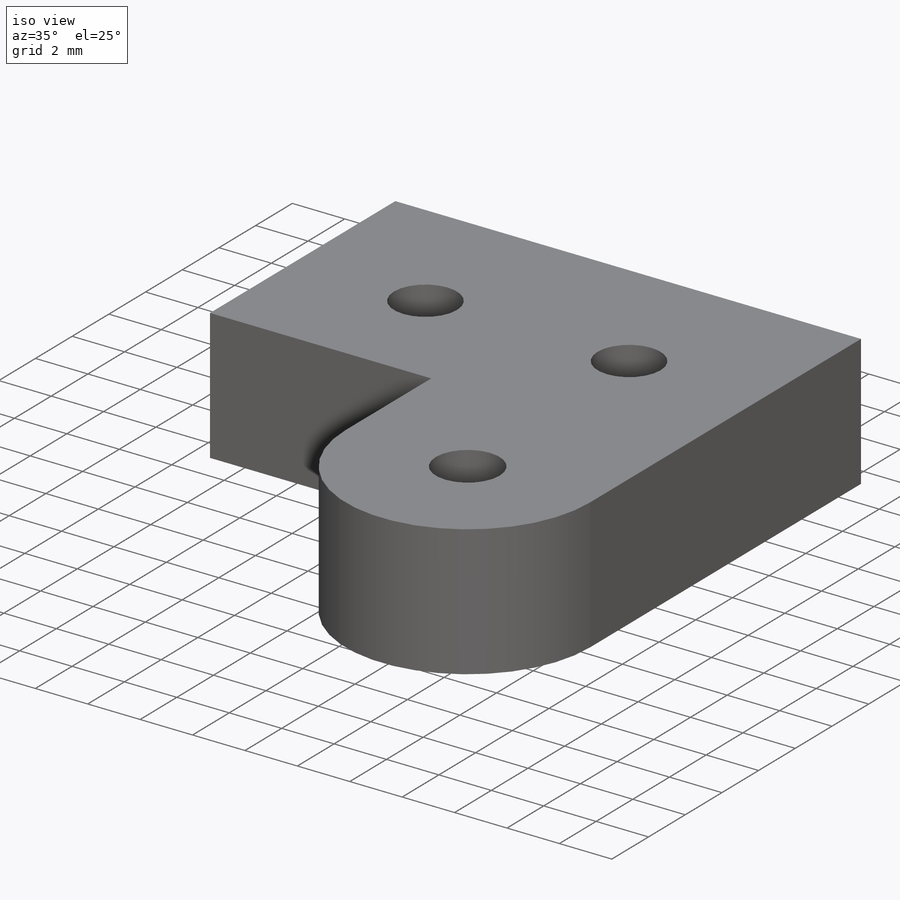
[diagram: iso view]
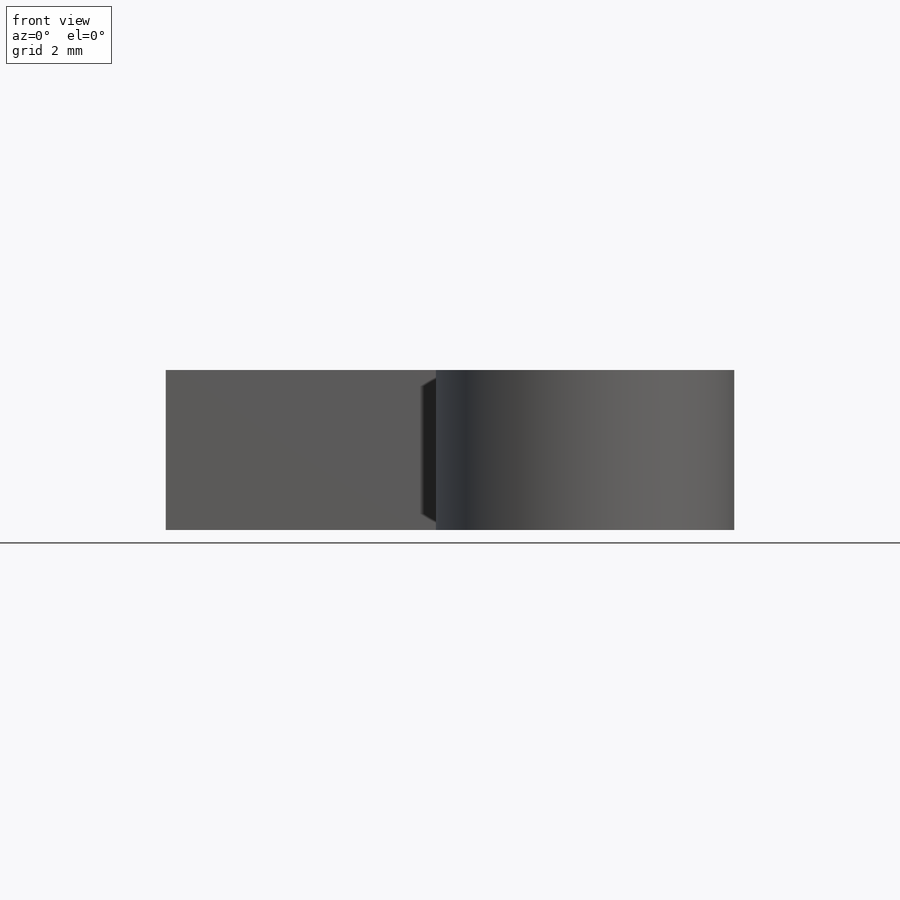
[diagram: front view]
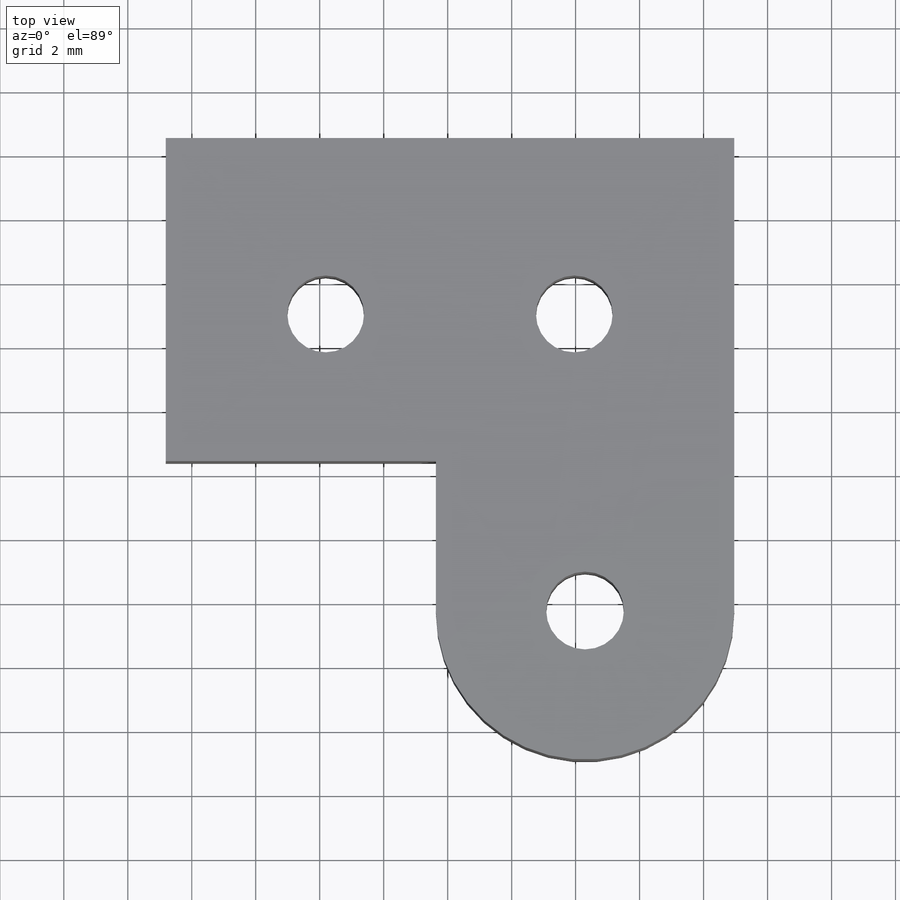
[diagram: top view]
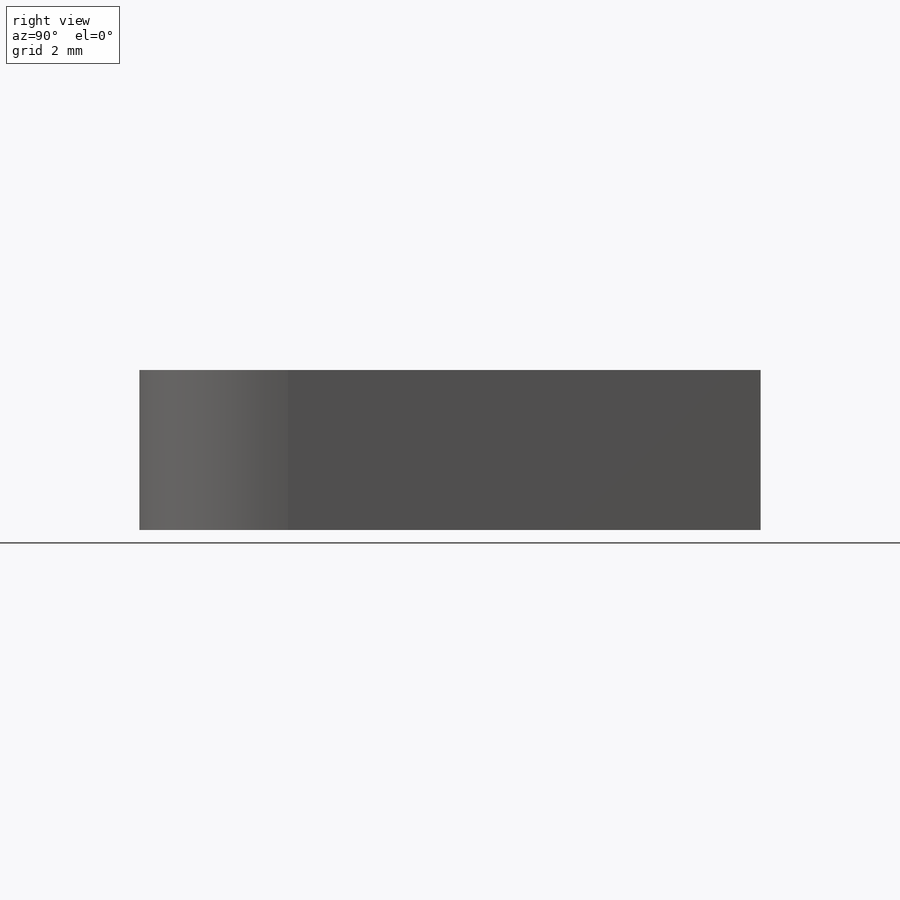
[diagram: right view]
SOLIDWORKS PART (.sldprt)
format: sldprt  version: not decoded by parser v0  size: 185,344 bytes
history: native  units: mm
features: sketch x6, material x1, extrude x1, hole x1, cut_extrude x1 + 1 further entry (+11 scaffold rows collapsed)
feature tree (22):
  scaffold x11  (default folders/planes/origin — collapsed)
  material  "Material <not specified>"
  "Annotations"  RD1=10.8mm RD2=9.32738mm
  sketch  "Sketch1"  dims[c1.D2=~11.419747mm c1.D1=~4.66369mm c2.D2=~4.66369mm c2.D1=15.0mm c3.D2=12.0mm c3.D3=15.0mm c3.D1=15.0mm c4.D2=12.0mm c4.D1=~4.672467mm]
  extrude  "Boss-Extrude1"  Depth=5mm
  sketch  "Sketch2"  dims[D1=10.8mm]
  sketch  "Sketch3"  dims[D1=10.8mm]
  hole  "M2 Clearance Hole1"  Diameter=2.4mm Depth=12mm
  sketch  "Sketch5"  dims[D1=5.5mm D2=5.5mm D3=5.0mm D4=5.0mm]
  sketch  "Sketch4"  dims[hole-wizard template sketch: 49 standard entries collapsed; hole parameters kept: c15.Drill Angle=118.0deg]
  sketch  "Sketch6"  dims[D1=~4.66369mm]
  cut_extrude  "Cut-Extrude1"  Depth=10mm
decode coverage: 9 of 9 modeling features carry decoded parameters; 1 rows unclassified (native names shown)
note: ~ marks probable driven/reference dimensions
note: suppression state not decoded; provenance and decode notes live in map.json
